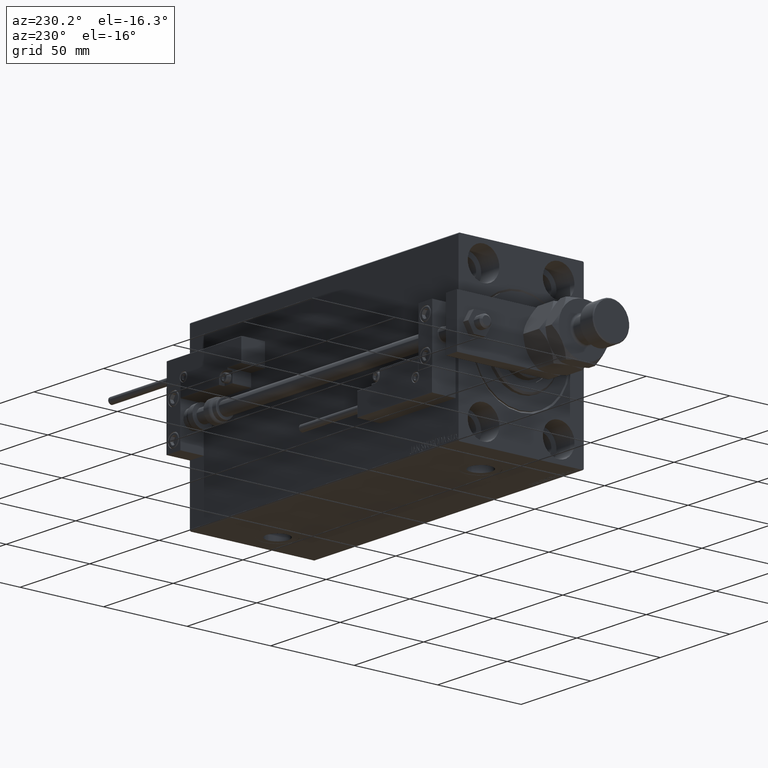
[diagram: clean part render]
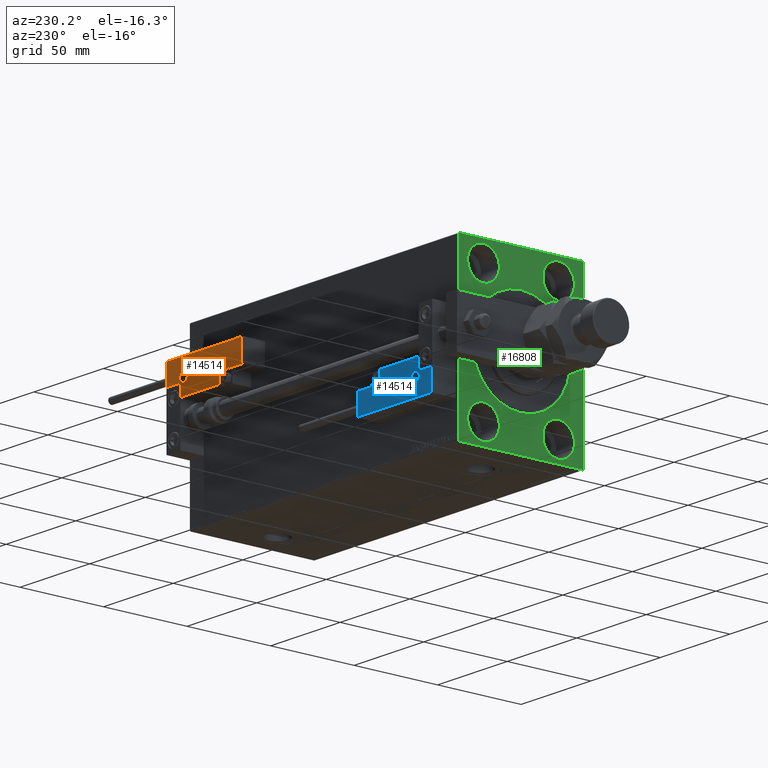
[diagram: same view with three faces highlighted in distinct colors, each labeled with its STEP entity id]
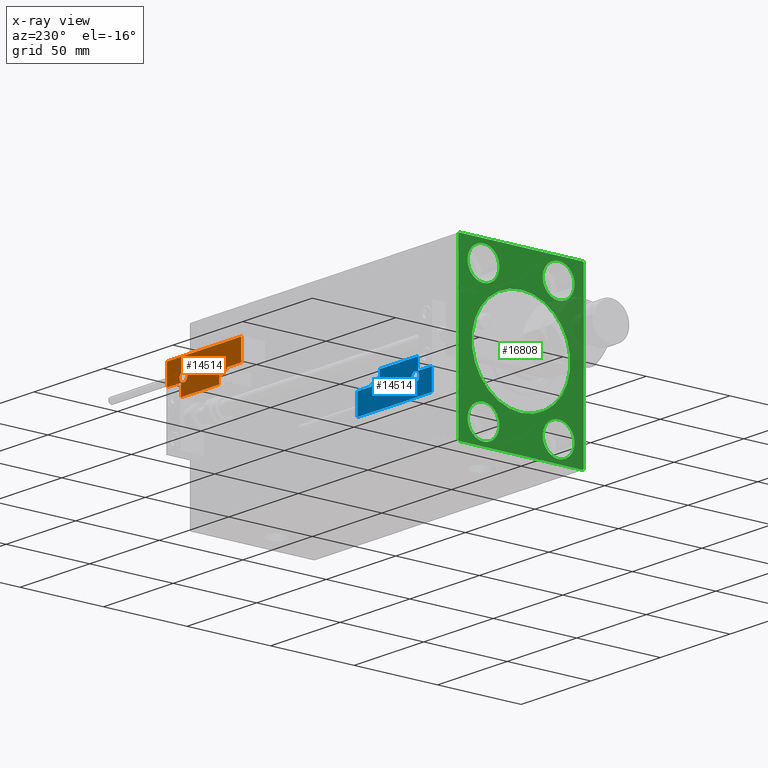
[diagram: x-ray of the same camera — body ghosted, the three highlighted faces saturated]
A machine part, auxiliary view with three faces highlighted in distinct colors.
The next image is the same camera in x-ray (body ghosted, the three faces saturated) — at least one of them is partly hidden behind the body in this view.
Their STEP definitions:

[orange] entity #14514 — the highlighted planar face has unit normal (0, 1, -0).
#740 = CARTESIAN_POINT ( 'NONE',  ( -26.69999999999994600, 7.000000000000005329, 14.00000000000000000 ) ) ;
#2530 = EDGE_CURVE ( 'NONE', #38291, #3493, #51953, .T. ) ;
#2854 = DIRECTION ( 'NONE',  ( -1.000000000000000000, 6.424901762877063495E-17, -0.000000000000000000 ) ) ;
#3014 = VERTEX_POINT ( 'NONE', #40959 ) ;
#3027 = EDGE_CURVE ( 'NONE', #42835, #11031, #27451, .T. ) ;
#3493 = VERTEX_POINT ( 'NONE', #11672 ) ;
#4336 = ORIENTED_EDGE ( 'NONE', *, *, #49762, .T. ) ;
#5076 = CARTESIAN_POINT ( 'NONE',  ( 10.69999999999999929, 3.000000000000003109, 14.00000000000000000 ) ) ;
#5101 = PLANE ( 'NONE',  #51529 ) ;
#5460 = VECTOR ( 'NONE', #21487, 1000.000000000000000 ) ;
#5518 = ORIENTED_EDGE ( 'NONE', *, *, #3027, .T. ) ;
#5536 = EDGE_CURVE ( 'NONE', #11031, #38291, #29888, .T. ) ;
#5653 = ORIENTED_EDGE ( 'NONE', *, *, #20303, .T. ) ;
#6843 = DIRECTION ( 'NONE',  ( 0.000000000000000000, -0.000000000000000000, -1.000000000000000000 ) ) ;
#8189 = CARTESIAN_POINT ( 'NONE',  ( 17.00000000000000000, 6.300000000000003375, 14.00000000000000000 ) ) ;
#8576 = CARTESIAN_POINT ( 'NONE',  ( 10.69999999999999929, 0.3000000000000032085, 14.00000000000000000 ) ) ;
#8859 = CARTESIAN_POINT ( 'NONE',  ( -16.99999999999999289, 7.300000000000003375, 14.00000000000000000 ) ) ;
#10370 = ORIENTED_EDGE ( 'NONE', *, *, #45695, .T. ) ;
#10824 = ORIENTED_EDGE ( 'NONE', *, *, #23401, .T. ) ;
#11031 = VERTEX_POINT ( 'NONE', #47113 ) ;
#11099 = CARTESIAN_POINT ( 'NONE',  ( 13.99999999999999822, 3.000000000000002665, 14.00000000000000000 ) ) ;
#11375 = EDGE_LOOP ( 'NONE', ( #10824, #13562 ) ) ;
#11436 = VECTOR ( 'NONE', #2854, 1000.000000000000000 ) ;
#11672 = CARTESIAN_POINT ( 'NONE',  ( -26.69999999999993534, 19.70000000000002061, 14.00000000000000000 ) ) ;
#12665 = FACE_OUTER_BOUND ( 'NONE', #19679, .T. ) ;
#12864 = LINE ( 'NONE', #49578, #19739 ) ;
#12923 = FACE_BOUND ( 'NONE', #11375, .T. ) ;
#12942 = DIRECTION ( 'NONE',  ( 1.000000000000000000, 0.000000000000000000, 0.000000000000000000 ) ) ;
#13094 = CARTESIAN_POINT ( 'NONE',  ( 26.70000000000006324, 19.70000000000001705, 14.00000000000000000 ) ) ;
#13562 = ORIENTED_EDGE ( 'NONE', *, *, #27536, .T. ) ;
#13892 = ORIENTED_EDGE ( 'NONE', *, *, #46484, .T. ) ;
#14514 = ADVANCED_FACE ( 'NONE', ( #12923, #12665 ), #5101, .T. ) ;
#14814 = ORIENTED_EDGE ( 'NONE', *, *, #2530, .T. ) ;
#15230 = CARTESIAN_POINT ( 'NONE',  ( -16.69999999999999218, 7.300000000000003375, 14.00000000000000000 ) ) ;
#17514 = VERTEX_POINT ( 'NONE', #43744 ) ;
#17745 = CARTESIAN_POINT ( 'NONE',  ( 26.70000000000006324, 20.00000000000001776, 14.00000000000000000 ) ) ;
#18009 = DIRECTION ( 'NONE',  ( 0.000000000000000000, 1.000000000000000000, -0.000000000000000000 ) ) ;
#19000 = CARTESIAN_POINT ( 'NONE',  ( -17.59999999999994813, 9.800000000000004263, 14.00000000000000000 ) ) ;
#19679 = EDGE_LOOP ( 'NONE', ( #31723, #4336, #5653, #23576, #32252, #13892, #5518, #25214, #14814, #52307, #10370 ) ) ;
#19739 = VECTOR ( 'NONE', #36907, 1000.000000000000000 ) ;
#20282 = EDGE_CURVE ( 'NONE', #3493, #40929, #20436, .T. ) ;
#20303 = EDGE_CURVE ( 'NONE', #27945, #40262, #12864, .T. ) ;
#20436 = LINE ( 'NONE', #740, #36110 ) ;
#21487 = DIRECTION ( 'NONE',  ( 0.000000000000000000, -1.000000000000000000, 0.000000000000000000 ) ) ;
#21797 = CARTESIAN_POINT ( 'NONE',  ( 0.000000000000000000, 0.000000000000000000, 14.00000000000000000 ) ) ;
#21817 = DIRECTION ( 'NONE',  ( 0.000000000000000000, -0.000000000000000000, -1.000000000000000000 ) ) ;
#22048 = LINE ( 'NONE', #8859, #46933 ) ;
#22856 = VECTOR ( 'NONE', #18009, 1000.000000000000000 ) ;
#23401 = EDGE_CURVE ( 'NONE', #3014, #50539, #33631, .T. ) ;
#23576 = ORIENTED_EDGE ( 'NONE', *, *, #32641, .T. ) ;
#24981 = CARTESIAN_POINT ( 'NONE',  ( 16.69999999999999929, 6.300000000000003375, 14.00000000000000000 ) ) ;
#25214 = ORIENTED_EDGE ( 'NONE', *, *, #5536, .T. ) ;
#26704 = DIRECTION ( 'NONE',  ( 9.912705577010318647E-16, 1.000000000000000000, 0.000000000000000000 ) ) ;
#27451 = LINE ( 'NONE', #28518, #31248 ) ;
#27536 = EDGE_CURVE ( 'NONE', #50539, #3014, #41548, .T. ) ;
#27945 = VERTEX_POINT ( 'NONE', #8576 ) ;
#28518 = CARTESIAN_POINT ( 'NONE',  ( 27.00000000000006395, 7.300000000000007816, 14.00000000000000000 ) ) ;
#28940 = DIRECTION ( 'NONE',  ( 1.000000000000000000, 5.782411586589357639E-16, -0.000000000000000000 ) ) ;
#29888 = LINE ( 'NONE', #17745, #22856 ) ;
#30155 = AXIS2_PLACEMENT_3D ( 'NONE', #43812, #6843, #44343 ) ;
#31017 = CARTESIAN_POINT ( 'NONE',  ( 16.69999999999999929, 7.000000000000009770, 14.00000000000000000 ) ) ;
#31248 = VECTOR ( 'NONE', #52559, 1000.000000000000000 ) ;
#31429 = EDGE_CURVE ( 'NONE', #37066, #47049, #36525, .T. ) ;
#31660 = LINE ( 'NONE', #39774, #34994 ) ;
#31723 = ORIENTED_EDGE ( 'NONE', *, *, #43456, .T. ) ;
#32226 = CARTESIAN_POINT ( 'NONE',  ( -26.99999999999993605, 19.70000000000002061, 14.00000000000000000 ) ) ;
#32252 = ORIENTED_EDGE ( 'NONE', *, *, #31429, .T. ) ;
#32641 = EDGE_CURVE ( 'NONE', #40262, #37066, #40499, .T. ) ;
#32947 = CARTESIAN_POINT ( 'NONE',  ( -26.69999999999994600, 7.300000000000005151, 14.00000000000000000 ) ) ;
#33626 = DIRECTION ( 'NONE',  ( -8.006416042969869188E-16, -1.000000000000000000, 0.000000000000000000 ) ) ;
#33631 = CIRCLE ( 'NONE', #30155, 2.800000000000000266 ) ;
#33908 = LINE ( 'NONE', #40986, #5460 ) ;
#34994 = VECTOR ( 'NONE', #40323, 1000.000000000000000 ) ;
#35926 = DIRECTION ( 'NONE',  ( 0.000000000000000000, -0.000000000000000000, -1.000000000000000000 ) ) ;
#36110 = VECTOR ( 'NONE', #33626, 1000.000000000000000 ) ;
#36525 = LINE ( 'NONE', #8189, #51173 ) ;
#36907 = DIRECTION ( 'NONE',  ( -0.000000000000000000, 1.000000000000000000, -0.000000000000000000 ) ) ;
#37066 = VERTEX_POINT ( 'NONE', #51188 ) ;
#38004 = DIRECTION ( 'NONE',  ( 1.000000000000000000, 0.000000000000000000, 0.000000000000000000 ) ) ;
#38291 = VERTEX_POINT ( 'NONE', #13094 ) ;
#38528 = DIRECTION ( 'NONE',  ( 1.000000000000000000, -1.734723475976815230E-16, 0.000000000000000000 ) ) ;
#39161 = VECTOR ( 'NONE', #26704, 1000.000000000000000 ) ;
#39774 = CARTESIAN_POINT ( 'NONE',  ( 11.00000000000000000, 0.3000000000000032085, 14.00000000000000000 ) ) ;
#40262 = VERTEX_POINT ( 'NONE', #5076 ) ;
#40323 = DIRECTION ( 'NONE',  ( 1.000000000000000000, -0.000000000000000000, 0.000000000000000000 ) ) ;
#40499 = CIRCLE ( 'NONE', #47384, 3.299999999999997158 ) ;
#40929 = VERTEX_POINT ( 'NONE', #32947 ) ;
#40959 = CARTESIAN_POINT ( 'NONE',  ( -11.99999999999994849, 9.800000000000004263, 14.00000000000000000 ) ) ;
#40986 = CARTESIAN_POINT ( 'NONE',  ( -16.69999999999999218, 3.252606517456513302E-15, 14.00000000000000000 ) ) ;
#41548 = CIRCLE ( 'NONE', #48454, 2.800000000000000266 ) ;
#42352 = CARTESIAN_POINT ( 'NONE',  ( -14.79999999999994920, 9.800000000000004263, 14.00000000000000000 ) ) ;
#42835 = VERTEX_POINT ( 'NONE', #53139 ) ;
#43456 = EDGE_CURVE ( 'NONE', #50526, #17514, #33908, .T. ) ;
#43744 = CARTESIAN_POINT ( 'NONE',  ( -16.69999999999999218, 0.3000000000000032085, 14.00000000000000000 ) ) ;
#43762 = DIRECTION ( 'NONE',  ( 1.000000000000000000, 0.000000000000000000, 0.000000000000000000 ) ) ;
#43812 = CARTESIAN_POINT ( 'NONE',  ( -14.79999999999994920, 9.800000000000004263, 14.00000000000000000 ) ) ;
#44343 = DIRECTION ( 'NONE',  ( 1.000000000000000000, 0.000000000000000000, 0.000000000000000000 ) ) ;
#45595 = DIRECTION ( 'NONE',  ( -0.000000000000000000, 0.000000000000000000, 1.000000000000000000 ) ) ;
#45695 = EDGE_CURVE ( 'NONE', #40929, #50526, #22048, .T. ) ;
#46484 = EDGE_CURVE ( 'NONE', #47049, #42835, #51550, .T. ) ;
#46933 = VECTOR ( 'NONE', #38528, 1000.000000000000000 ) ;
#47049 = VERTEX_POINT ( 'NONE', #24981 ) ;
#47113 = CARTESIAN_POINT ( 'NONE',  ( 26.70000000000006324, 7.300000000000007816, 14.00000000000000000 ) ) ;
#47384 = AXIS2_PLACEMENT_3D ( 'NONE', #11099, #35926, #43762 ) ;
#48454 = AXIS2_PLACEMENT_3D ( 'NONE', #42352, #21817, #12942 ) ;
#49578 = CARTESIAN_POINT ( 'NONE',  ( 10.69999999999999929, 3.000000000000003109, 14.00000000000000000 ) ) ;
#49762 = EDGE_CURVE ( 'NONE', #17514, #27945, #31660, .T. ) ;
#50526 = VERTEX_POINT ( 'NONE', #15230 ) ;
#50539 = VERTEX_POINT ( 'NONE', #19000 ) ;
#51173 = VECTOR ( 'NONE', #28940, 1000.000000000000000 ) ;
#51188 = CARTESIAN_POINT ( 'NONE',  ( 13.99999999999999822, 6.300000000000001599, 14.00000000000000000 ) ) ;
#51529 = AXIS2_PLACEMENT_3D ( 'NONE', #21797, #45595, #38004 ) ;
#51550 = LINE ( 'NONE', #31017, #39161 ) ;
#51953 = LINE ( 'NONE', #32226, #11436 ) ;
#52307 = ORIENTED_EDGE ( 'NONE', *, *, #20282, .T. ) ;
#52559 = DIRECTION ( 'NONE',  ( 1.000000000000000000, -1.734723475976796001E-16, 0.000000000000000000 ) ) ;
#53139 = CARTESIAN_POINT ( 'NONE',  ( 16.69999999999999929, 7.300000000000009592, 14.00000000000000000 ) ) ;

[blue] entity #14514 — the highlighted planar face has unit normal (-0, 1, -0).
#740 = CARTESIAN_POINT ( 'NONE',  ( -26.69999999999994600, 7.000000000000005329, 14.00000000000000000 ) ) ;
#2530 = EDGE_CURVE ( 'NONE', #38291, #3493, #51953, .T. ) ;
#2854 = DIRECTION ( 'NONE',  ( -1.000000000000000000, 6.424901762877063495E-17, -0.000000000000000000 ) ) ;
#3014 = VERTEX_POINT ( 'NONE', #40959 ) ;
#3027 = EDGE_CURVE ( 'NONE', #42835, #11031, #27451, .T. ) ;
#3493 = VERTEX_POINT ( 'NONE', #11672 ) ;
#4336 = ORIENTED_EDGE ( 'NONE', *, *, #49762, .T. ) ;
#5076 = CARTESIAN_POINT ( 'NONE',  ( 10.69999999999999929, 3.000000000000003109, 14.00000000000000000 ) ) ;
#5101 = PLANE ( 'NONE',  #51529 ) ;
#5460 = VECTOR ( 'NONE', #21487, 1000.000000000000000 ) ;
#5518 = ORIENTED_EDGE ( 'NONE', *, *, #3027, .T. ) ;
#5536 = EDGE_CURVE ( 'NONE', #11031, #38291, #29888, .T. ) ;
#5653 = ORIENTED_EDGE ( 'NONE', *, *, #20303, .T. ) ;
#6843 = DIRECTION ( 'NONE',  ( 0.000000000000000000, -0.000000000000000000, -1.000000000000000000 ) ) ;
#8189 = CARTESIAN_POINT ( 'NONE',  ( 17.00000000000000000, 6.300000000000003375, 14.00000000000000000 ) ) ;
#8576 = CARTESIAN_POINT ( 'NONE',  ( 10.69999999999999929, 0.3000000000000032085, 14.00000000000000000 ) ) ;
#8859 = CARTESIAN_POINT ( 'NONE',  ( -16.99999999999999289, 7.300000000000003375, 14.00000000000000000 ) ) ;
#10370 = ORIENTED_EDGE ( 'NONE', *, *, #45695, .T. ) ;
#10824 = ORIENTED_EDGE ( 'NONE', *, *, #23401, .T. ) ;
#11031 = VERTEX_POINT ( 'NONE', #47113 ) ;
#11099 = CARTESIAN_POINT ( 'NONE',  ( 13.99999999999999822, 3.000000000000002665, 14.00000000000000000 ) ) ;
#11375 = EDGE_LOOP ( 'NONE', ( #10824, #13562 ) ) ;
#11436 = VECTOR ( 'NONE', #2854, 1000.000000000000000 ) ;
#11672 = CARTESIAN_POINT ( 'NONE',  ( -26.69999999999993534, 19.70000000000002061, 14.00000000000000000 ) ) ;
#12665 = FACE_OUTER_BOUND ( 'NONE', #19679, .T. ) ;
#12864 = LINE ( 'NONE', #49578, #19739 ) ;
#12923 = FACE_BOUND ( 'NONE', #11375, .T. ) ;
#12942 = DIRECTION ( 'NONE',  ( 1.000000000000000000, 0.000000000000000000, 0.000000000000000000 ) ) ;
#13094 = CARTESIAN_POINT ( 'NONE',  ( 26.70000000000006324, 19.70000000000001705, 14.00000000000000000 ) ) ;
#13562 = ORIENTED_EDGE ( 'NONE', *, *, #27536, .T. ) ;
#13892 = ORIENTED_EDGE ( 'NONE', *, *, #46484, .T. ) ;
#14514 = ADVANCED_FACE ( 'NONE', ( #12923, #12665 ), #5101, .T. ) ;
#14814 = ORIENTED_EDGE ( 'NONE', *, *, #2530, .T. ) ;
#15230 = CARTESIAN_POINT ( 'NONE',  ( -16.69999999999999218, 7.300000000000003375, 14.00000000000000000 ) ) ;
#17514 = VERTEX_POINT ( 'NONE', #43744 ) ;
#17745 = CARTESIAN_POINT ( 'NONE',  ( 26.70000000000006324, 20.00000000000001776, 14.00000000000000000 ) ) ;
#18009 = DIRECTION ( 'NONE',  ( 0.000000000000000000, 1.000000000000000000, -0.000000000000000000 ) ) ;
#19000 = CARTESIAN_POINT ( 'NONE',  ( -17.59999999999994813, 9.800000000000004263, 14.00000000000000000 ) ) ;
#19679 = EDGE_LOOP ( 'NONE', ( #31723, #4336, #5653, #23576, #32252, #13892, #5518, #25214, #14814, #52307, #10370 ) ) ;
#19739 = VECTOR ( 'NONE', #36907, 1000.000000000000000 ) ;
#20282 = EDGE_CURVE ( 'NONE', #3493, #40929, #20436, .T. ) ;
#20303 = EDGE_CURVE ( 'NONE', #27945, #40262, #12864, .T. ) ;
#20436 = LINE ( 'NONE', #740, #36110 ) ;
#21487 = DIRECTION ( 'NONE',  ( 0.000000000000000000, -1.000000000000000000, 0.000000000000000000 ) ) ;
#21797 = CARTESIAN_POINT ( 'NONE',  ( 0.000000000000000000, 0.000000000000000000, 14.00000000000000000 ) ) ;
#21817 = DIRECTION ( 'NONE',  ( 0.000000000000000000, -0.000000000000000000, -1.000000000000000000 ) ) ;
#22048 = LINE ( 'NONE', #8859, #46933 ) ;
#22856 = VECTOR ( 'NONE', #18009, 1000.000000000000000 ) ;
#23401 = EDGE_CURVE ( 'NONE', #3014, #50539, #33631, .T. ) ;
#23576 = ORIENTED_EDGE ( 'NONE', *, *, #32641, .T. ) ;
#24981 = CARTESIAN_POINT ( 'NONE',  ( 16.69999999999999929, 6.300000000000003375, 14.00000000000000000 ) ) ;
#25214 = ORIENTED_EDGE ( 'NONE', *, *, #5536, .T. ) ;
#26704 = DIRECTION ( 'NONE',  ( 9.912705577010318647E-16, 1.000000000000000000, 0.000000000000000000 ) ) ;
#27451 = LINE ( 'NONE', #28518, #31248 ) ;
#27536 = EDGE_CURVE ( 'NONE', #50539, #3014, #41548, .T. ) ;
#27945 = VERTEX_POINT ( 'NONE', #8576 ) ;
#28518 = CARTESIAN_POINT ( 'NONE',  ( 27.00000000000006395, 7.300000000000007816, 14.00000000000000000 ) ) ;
#28940 = DIRECTION ( 'NONE',  ( 1.000000000000000000, 5.782411586589357639E-16, -0.000000000000000000 ) ) ;
#29888 = LINE ( 'NONE', #17745, #22856 ) ;
#30155 = AXIS2_PLACEMENT_3D ( 'NONE', #43812, #6843, #44343 ) ;
#31017 = CARTESIAN_POINT ( 'NONE',  ( 16.69999999999999929, 7.000000000000009770, 14.00000000000000000 ) ) ;
#31248 = VECTOR ( 'NONE', #52559, 1000.000000000000000 ) ;
#31429 = EDGE_CURVE ( 'NONE', #37066, #47049, #36525, .T. ) ;
#31660 = LINE ( 'NONE', #39774, #34994 ) ;
#31723 = ORIENTED_EDGE ( 'NONE', *, *, #43456, .T. ) ;
#32226 = CARTESIAN_POINT ( 'NONE',  ( -26.99999999999993605, 19.70000000000002061, 14.00000000000000000 ) ) ;
#32252 = ORIENTED_EDGE ( 'NONE', *, *, #31429, .T. ) ;
#32641 = EDGE_CURVE ( 'NONE', #40262, #37066, #40499, .T. ) ;
#32947 = CARTESIAN_POINT ( 'NONE',  ( -26.69999999999994600, 7.300000000000005151, 14.00000000000000000 ) ) ;
#33626 = DIRECTION ( 'NONE',  ( -8.006416042969869188E-16, -1.000000000000000000, 0.000000000000000000 ) ) ;
#33631 = CIRCLE ( 'NONE', #30155, 2.800000000000000266 ) ;
#33908 = LINE ( 'NONE', #40986, #5460 ) ;
#34994 = VECTOR ( 'NONE', #40323, 1000.000000000000000 ) ;
#35926 = DIRECTION ( 'NONE',  ( 0.000000000000000000, -0.000000000000000000, -1.000000000000000000 ) ) ;
#36110 = VECTOR ( 'NONE', #33626, 1000.000000000000000 ) ;
#36525 = LINE ( 'NONE', #8189, #51173 ) ;
#36907 = DIRECTION ( 'NONE',  ( -0.000000000000000000, 1.000000000000000000, -0.000000000000000000 ) ) ;
#37066 = VERTEX_POINT ( 'NONE', #51188 ) ;
#38004 = DIRECTION ( 'NONE',  ( 1.000000000000000000, 0.000000000000000000, 0.000000000000000000 ) ) ;
#38291 = VERTEX_POINT ( 'NONE', #13094 ) ;
#38528 = DIRECTION ( 'NONE',  ( 1.000000000000000000, -1.734723475976815230E-16, 0.000000000000000000 ) ) ;
#39161 = VECTOR ( 'NONE', #26704, 1000.000000000000000 ) ;
#39774 = CARTESIAN_POINT ( 'NONE',  ( 11.00000000000000000, 0.3000000000000032085, 14.00000000000000000 ) ) ;
#40262 = VERTEX_POINT ( 'NONE', #5076 ) ;
#40323 = DIRECTION ( 'NONE',  ( 1.000000000000000000, -0.000000000000000000, 0.000000000000000000 ) ) ;
#40499 = CIRCLE ( 'NONE', #47384, 3.299999999999997158 ) ;
#40929 = VERTEX_POINT ( 'NONE', #32947 ) ;
#40959 = CARTESIAN_POINT ( 'NONE',  ( -11.99999999999994849, 9.800000000000004263, 14.00000000000000000 ) ) ;
#40986 = CARTESIAN_POINT ( 'NONE',  ( -16.69999999999999218, 3.252606517456513302E-15, 14.00000000000000000 ) ) ;
#41548 = CIRCLE ( 'NONE', #48454, 2.800000000000000266 ) ;
#42352 = CARTESIAN_POINT ( 'NONE',  ( -14.79999999999994920, 9.800000000000004263, 14.00000000000000000 ) ) ;
#42835 = VERTEX_POINT ( 'NONE', #53139 ) ;
#43456 = EDGE_CURVE ( 'NONE', #50526, #17514, #33908, .T. ) ;
#43744 = CARTESIAN_POINT ( 'NONE',  ( -16.69999999999999218, 0.3000000000000032085, 14.00000000000000000 ) ) ;
#43762 = DIRECTION ( 'NONE',  ( 1.000000000000000000, 0.000000000000000000, 0.000000000000000000 ) ) ;
#43812 = CARTESIAN_POINT ( 'NONE',  ( -14.79999999999994920, 9.800000000000004263, 14.00000000000000000 ) ) ;
#44343 = DIRECTION ( 'NONE',  ( 1.000000000000000000, 0.000000000000000000, 0.000000000000000000 ) ) ;
#45595 = DIRECTION ( 'NONE',  ( -0.000000000000000000, 0.000000000000000000, 1.000000000000000000 ) ) ;
#45695 = EDGE_CURVE ( 'NONE', #40929, #50526, #22048, .T. ) ;
#46484 = EDGE_CURVE ( 'NONE', #47049, #42835, #51550, .T. ) ;
#46933 = VECTOR ( 'NONE', #38528, 1000.000000000000000 ) ;
#47049 = VERTEX_POINT ( 'NONE', #24981 ) ;
#47113 = CARTESIAN_POINT ( 'NONE',  ( 26.70000000000006324, 7.300000000000007816, 14.00000000000000000 ) ) ;
#47384 = AXIS2_PLACEMENT_3D ( 'NONE', #11099, #35926, #43762 ) ;
#48454 = AXIS2_PLACEMENT_3D ( 'NONE', #42352, #21817, #12942 ) ;
#49578 = CARTESIAN_POINT ( 'NONE',  ( 10.69999999999999929, 3.000000000000003109, 14.00000000000000000 ) ) ;
#49762 = EDGE_CURVE ( 'NONE', #17514, #27945, #31660, .T. ) ;
#50526 = VERTEX_POINT ( 'NONE', #15230 ) ;
#50539 = VERTEX_POINT ( 'NONE', #19000 ) ;
#51173 = VECTOR ( 'NONE', #28940, 1000.000000000000000 ) ;
#51188 = CARTESIAN_POINT ( 'NONE',  ( 13.99999999999999822, 6.300000000000001599, 14.00000000000000000 ) ) ;
#51529 = AXIS2_PLACEMENT_3D ( 'NONE', #21797, #45595, #38004 ) ;
#51550 = LINE ( 'NONE', #31017, #39161 ) ;
#51953 = LINE ( 'NONE', #32226, #11436 ) ;
#52307 = ORIENTED_EDGE ( 'NONE', *, *, #20282, .T. ) ;
#52559 = DIRECTION ( 'NONE',  ( 1.000000000000000000, -1.734723475976796001E-16, 0.000000000000000000 ) ) ;
#53139 = CARTESIAN_POINT ( 'NONE',  ( 16.69999999999999929, 7.300000000000009592, 14.00000000000000000 ) ) ;

[green] entity #16808 — the highlighted planar face has unit normal (1, 0, 0).
#206 = CARTESIAN_POINT ( 'NONE',  ( 0.000000000000000000, -37.50000000000000711, -49.50000000000000711 ) ) ;
#976 = LINE ( 'NONE', #5028, #36427 ) ;
#1316 = CARTESIAN_POINT ( 'NONE',  ( 0.000000000000000000, 37.50000000000000711, -49.50000000000000000 ) ) ;
#1381 = CARTESIAN_POINT ( 'NONE',  ( 0.000000000000000000, 22.49999999999999645, -37.99999999999999289 ) ) ;
#1776 = CARTESIAN_POINT ( 'NONE',  ( 0.000000000000000000, 22.50000000000000355, 37.99999999999999289 ) ) ;
#2148 = VERTEX_POINT ( 'NONE', #40412 ) ;
#2821 = VERTEX_POINT ( 'NONE', #52899 ) ;
#2992 = CARTESIAN_POINT ( 'NONE',  ( 0.000000000000000000, -22.50000000000000711, -37.99999999999999289 ) ) ;
#4070 = DIRECTION ( 'NONE',  ( 1.000000000000000000, 0.000000000000000000, 0.000000000000000000 ) ) ;
#4221 = EDGE_LOOP ( 'NONE', ( #42963, #12514, #35728, #10692, #43498, #34123, #49846, #49848 ) ) ;
#4250 = CARTESIAN_POINT ( 'NONE',  ( 0.000000000000000000, -22.50000000000000711, -47.49999999999999289 ) ) ;
#4279 = CARTESIAN_POINT ( 'NONE',  ( 0.000000000000000000, 37.50000000000000711, -49.50000000000000000 ) ) ;
#4466 = VERTEX_POINT ( 'NONE', #29453 ) ;
#5028 = CARTESIAN_POINT ( 'NONE',  ( 0.000000000000000000, -37.00000000000000711, -50.00000000000000711 ) ) ;
#5295 = EDGE_CURVE ( 'NONE', #5676, #7790, #21156, .T. ) ;
#5489 = EDGE_CURVE ( 'NONE', #49007, #46819, #51483, .T. ) ;
#5659 = AXIS2_PLACEMENT_3D ( 'NONE', #12652, #8864, #21512 ) ;
#5676 = VERTEX_POINT ( 'NONE', #37675 ) ;
#6311 = CARTESIAN_POINT ( 'NONE',  ( 0.000000000000000000, 37.50000000000000711, -50.00000000000000000 ) ) ;
#6845 = ORIENTED_EDGE ( 'NONE', *, *, #50358, .F. ) ;
#7790 = VERTEX_POINT ( 'NONE', #50691 ) ;
#7842 = FACE_BOUND ( 'NONE', #42972, .T. ) ;
#7943 = CIRCLE ( 'NONE', #38935, 9.500000000000001776 ) ;
#8031 = CARTESIAN_POINT ( 'NONE',  ( 0.000000000000000000, 37.00000000000000711, -50.00000000000000000 ) ) ;
#8628 = ORIENTED_EDGE ( 'NONE', *, *, #18410, .F. ) ;
#8864 = DIRECTION ( 'NONE',  ( 1.000000000000000000, 0.000000000000000000, 0.000000000000000000 ) ) ;
#9139 = DIRECTION ( 'NONE',  ( 0.000000000000000000, 0.000000000000000000, 1.000000000000000000 ) ) ;
#9145 = DIRECTION ( 'NONE',  ( 0.000000000000000000, 0.000000000000000000, 1.000000000000000000 ) ) ;
#9147 = CIRCLE ( 'NONE', #13456, 9.500000000000001776 ) ;
#9834 = CARTESIAN_POINT ( 'NONE',  ( 0.000000000000000000, -22.50000000000000711, -37.99999999999999289 ) ) ;
#10209 = CARTESIAN_POINT ( 'NONE',  ( 0.000000000000000000, 22.49999999999999645, -28.49999999999998934 ) ) ;
#10547 = CARTESIAN_POINT ( 'NONE',  ( 0.000000000000000000, 22.50000000000000355, 37.99999999999999289 ) ) ;
#10692 = ORIENTED_EDGE ( 'NONE', *, *, #21124, .T. ) ;
#12501 = ORIENTED_EDGE ( 'NONE', *, *, #52945, .T. ) ;
#12514 = ORIENTED_EDGE ( 'NONE', *, *, #28629, .T. ) ;
#12540 = CIRCLE ( 'NONE', #31467, 9.500000000000001776 ) ;
#12624 = EDGE_CURVE ( 'NONE', #35509, #39568, #37666, .T. ) ;
#12652 = CARTESIAN_POINT ( 'NONE',  ( 0.000000000000000000, 0.000000000000000000, 0.000000000000000000 ) ) ;
#12714 = DIRECTION ( 'NONE',  ( -1.000000000000000000, 0.000000000000000000, 0.000000000000000000 ) ) ;
#12997 = VERTEX_POINT ( 'NONE', #18300 ) ;
#13309 = DIRECTION ( 'NONE',  ( 0.000000000000000000, 0.000000000000000000, -1.000000000000000000 ) ) ;
#13456 = AXIS2_PLACEMENT_3D ( 'NONE', #1776, #50605, #30604 ) ;
#13947 = VERTEX_POINT ( 'NONE', #4250 ) ;
#14920 = CARTESIAN_POINT ( 'NONE',  ( 0.000000000000000000, -36.99999999999997868, 49.99999999999999289 ) ) ;
#15011 = EDGE_LOOP ( 'NONE', ( #12501, #51543 ) ) ;
#15329 = CARTESIAN_POINT ( 'NONE',  ( 0.000000000000000000, 36.99999999999999289, 50.00000000000000711 ) ) ;
#16808 = ADVANCED_FACE ( 'NONE', ( #32650, #41549, #7842, #49123, #21005, #37482 ), #32378, .F. ) ;
#17343 = CARTESIAN_POINT ( 'NONE',  ( 0.000000000000000000, 0.000000000000000000, 0.000000000000000000 ) ) ;
#17515 = CIRCLE ( 'NONE', #33029, 9.500000000000001776 ) ;
#17892 = EDGE_CURVE ( 'NONE', #19969, #12997, #49113, .T. ) ;
#18300 = CARTESIAN_POINT ( 'NONE',  ( 0.000000000000000000, 22.49999999999999645, -47.49999999999999289 ) ) ;
#18410 = EDGE_CURVE ( 'NONE', #2821, #13947, #25779, .T. ) ;
#19208 = DIRECTION ( 'NONE',  ( -0.000000000000000000, 0.7071067811865474617, 0.7071067811865474617 ) ) ;
#19969 = VERTEX_POINT ( 'NONE', #10209 ) ;
#20055 = EDGE_CURVE ( 'NONE', #36237, #30337, #26386, .T. ) ;
#21005 = FACE_BOUND ( 'NONE', #29647, .T. ) ;
#21124 = EDGE_CURVE ( 'NONE', #36237, #30727, #52305, .T. ) ;
#21156 = CIRCLE ( 'NONE', #5659, 29.49999999999997513 ) ;
#21512 = DIRECTION ( 'NONE',  ( 0.000000000000000000, 0.000000000000000000, -1.000000000000000000 ) ) ;
#21824 = CIRCLE ( 'NONE', #37345, 9.500000000000001776 ) ;
#22239 = ORIENTED_EDGE ( 'NONE', *, *, #51586, .F. ) ;
#22333 = CARTESIAN_POINT ( 'NONE',  ( 0.000000000000000000, 37.49999999999999289, 50.00000000000000711 ) ) ;
#22602 = EDGE_CURVE ( 'NONE', #46988, #46819, #52701, .T. ) ;
#23032 = ORIENTED_EDGE ( 'NONE', *, *, #30793, .F. ) ;
#23202 = EDGE_CURVE ( 'NONE', #49007, #30727, #51110, .T. ) ;
#23840 = ORIENTED_EDGE ( 'NONE', *, *, #17892, .F. ) ;
#24655 = AXIS2_PLACEMENT_3D ( 'NONE', #17343, #29762, #13309 ) ;
#24731 = ORIENTED_EDGE ( 'NONE', *, *, #30041, .F. ) ;
#24865 = VERTEX_POINT ( 'NONE', #47797 ) ;
#24903 = CARTESIAN_POINT ( 'NONE',  ( 0.000000000000000000, 22.50000000000000355, 28.49999999999998934 ) ) ;
#25321 = CARTESIAN_POINT ( 'NONE',  ( 0.000000000000000000, -22.49999999999999645, 37.99999999999999289 ) ) ;
#25367 = DIRECTION ( 'NONE',  ( 0.000000000000000000, 0.000000000000000000, 1.000000000000000000 ) ) ;
#25740 = AXIS2_PLACEMENT_3D ( 'NONE', #33426, #4070, #48862 ) ;
#25779 = CIRCLE ( 'NONE', #31821, 9.500000000000001776 ) ;
#26329 = VECTOR ( 'NONE', #50672, 1000.000000000000114 ) ;
#26386 = LINE ( 'NONE', #22333, #29208 ) ;
#28027 = EDGE_CURVE ( 'NONE', #46988, #46816, #976, .T. ) ;
#28629 = EDGE_CURVE ( 'NONE', #2148, #30337, #39720, .T. ) ;
#28849 = CARTESIAN_POINT ( 'NONE',  ( 0.000000000000000000, 37.49999999999999289, 49.50000000000000000 ) ) ;
#28904 = VECTOR ( 'NONE', #44338, 1000.000000000000000 ) ;
#29208 = VECTOR ( 'NONE', #46640, 1000.000000000000000 ) ;
#29453 = CARTESIAN_POINT ( 'NONE',  ( 0.000000000000000000, -22.49999999999999645, 28.49999999999998934 ) ) ;
#29494 = DIRECTION ( 'NONE',  ( -1.000000000000000000, 0.000000000000000000, 0.000000000000000000 ) ) ;
#29647 = EDGE_LOOP ( 'NONE', ( #8628, #24731 ) ) ;
#29762 = DIRECTION ( 'NONE',  ( 1.000000000000000000, 0.000000000000000000, 0.000000000000000000 ) ) ;
#30041 = EDGE_CURVE ( 'NONE', #13947, #2821, #21824, .T. ) ;
#30337 = VERTEX_POINT ( 'NONE', #14920 ) ;
#30604 = DIRECTION ( 'NONE',  ( 0.000000000000000000, 0.000000000000000000, 1.000000000000000000 ) ) ;
#30660 = CIRCLE ( 'NONE', #24655, 29.49999999999997513 ) ;
#30727 = VERTEX_POINT ( 'NONE', #28849 ) ;
#30793 = EDGE_CURVE ( 'NONE', #4466, #24865, #17515, .T. ) ;
#31467 = AXIS2_PLACEMENT_3D ( 'NONE', #33540, #29494, #44927 ) ;
#31821 = AXIS2_PLACEMENT_3D ( 'NONE', #9834, #42497, #50585 ) ;
#32046 = DIRECTION ( 'NONE',  ( -0.000000000000000000, 0.7071067811865425767, -0.7071067811865525687 ) ) ;
#32378 = PLANE ( 'NONE',  #25740 ) ;
#32650 = FACE_BOUND ( 'NONE', #15011, .T. ) ;
#33029 = AXIS2_PLACEMENT_3D ( 'NONE', #25321, #49377, #9145 ) ;
#33426 = CARTESIAN_POINT ( 'NONE',  ( 0.000000000000000000, 0.000000000000000000, 0.000000000000000000 ) ) ;
#33540 = CARTESIAN_POINT ( 'NONE',  ( 0.000000000000000000, -22.49999999999999645, 37.99999999999999289 ) ) ;
#33677 = DIRECTION ( 'NONE',  ( -1.000000000000000000, 0.000000000000000000, 0.000000000000000000 ) ) ;
#33863 = DIRECTION ( 'NONE',  ( -0.000000000000000000, -0.7071067811865474617, 0.7071067811865474617 ) ) ;
#34123 = ORIENTED_EDGE ( 'NONE', *, *, #5489, .T. ) ;
#35042 = DIRECTION ( 'NONE',  ( -1.000000000000000000, 0.000000000000000000, 0.000000000000000000 ) ) ;
#35099 = DIRECTION ( 'NONE',  ( -1.000000000000000000, 0.000000000000000000, 0.000000000000000000 ) ) ;
#35509 = VERTEX_POINT ( 'NONE', #44106 ) ;
#35728 = ORIENTED_EDGE ( 'NONE', *, *, #20055, .F. ) ;
#36237 = VERTEX_POINT ( 'NONE', #39801 ) ;
#36427 = VECTOR ( 'NONE', #33863, 1000.000000000000114 ) ;
#36817 = EDGE_LOOP ( 'NONE', ( #23840, #42508 ) ) ;
#37345 = AXIS2_PLACEMENT_3D ( 'NONE', #2992, #33677, #9139 ) ;
#37482 = FACE_OUTER_BOUND ( 'NONE', #4221, .T. ) ;
#37666 = CIRCLE ( 'NONE', #48891, 9.500000000000001776 ) ;
#37675 = CARTESIAN_POINT ( 'NONE',  ( 0.000000000000000000, 3.612708057484688448E-15, -29.49999999999997513 ) ) ;
#38147 = VECTOR ( 'NONE', #19208, 1000.000000000000114 ) ;
#38734 = AXIS2_PLACEMENT_3D ( 'NONE', #48258, #35042, #51511 ) ;
#38935 = AXIS2_PLACEMENT_3D ( 'NONE', #1381, #12714, #25367 ) ;
#39154 = DIRECTION ( 'NONE',  ( 0.000000000000000000, 0.000000000000000000, 1.000000000000000000 ) ) ;
#39568 = VERTEX_POINT ( 'NONE', #24903 ) ;
#39720 = LINE ( 'NONE', #44591, #38147 ) ;
#39801 = CARTESIAN_POINT ( 'NONE',  ( 0.000000000000000000, 36.99999999999999289, 50.00000000000000711 ) ) ;
#40041 = EDGE_CURVE ( 'NONE', #12997, #19969, #7943, .T. ) ;
#40412 = CARTESIAN_POINT ( 'NONE',  ( 0.000000000000000000, -37.50000000000000711, 49.49999999999996447 ) ) ;
#41401 = VECTOR ( 'NONE', #42486, 1000.000000000000000 ) ;
#41549 = FACE_BOUND ( 'NONE', #36817, .T. ) ;
#41906 = EDGE_LOOP ( 'NONE', ( #48835, #6845 ) ) ;
#42262 = CARTESIAN_POINT ( 'NONE',  ( 0.000000000000000000, -37.00000000000000711, -50.00000000000000711 ) ) ;
#42486 = DIRECTION ( 'NONE',  ( 0.000000000000000000, -1.387778780781445676E-16, 1.000000000000000000 ) ) ;
#42497 = DIRECTION ( 'NONE',  ( -1.000000000000000000, 0.000000000000000000, 0.000000000000000000 ) ) ;
#42508 = ORIENTED_EDGE ( 'NONE', *, *, #40041, .F. ) ;
#42963 = ORIENTED_EDGE ( 'NONE', *, *, #48469, .F. ) ;
#42972 = EDGE_LOOP ( 'NONE', ( #22239, #23032 ) ) ;
#43498 = ORIENTED_EDGE ( 'NONE', *, *, #23202, .F. ) ;
#43802 = CARTESIAN_POINT ( 'NONE',  ( 0.000000000000000000, -37.50000000000000711, -50.00000000000000711 ) ) ;
#44106 = CARTESIAN_POINT ( 'NONE',  ( 0.000000000000000000, 22.50000000000000355, 47.49999999999999289 ) ) ;
#44338 = DIRECTION ( 'NONE',  ( 0.000000000000000000, 0.000000000000000000, -1.000000000000000000 ) ) ;
#44591 = CARTESIAN_POINT ( 'NONE',  ( 0.000000000000000000, -37.50000000000000711, 49.49999999999996447 ) ) ;
#44613 = DIRECTION ( 'NONE',  ( 0.000000000000000000, 1.000000000000000000, 9.251858538542970348E-17 ) ) ;
#44927 = DIRECTION ( 'NONE',  ( 0.000000000000000000, 0.000000000000000000, 1.000000000000000000 ) ) ;
#46237 = VECTOR ( 'NONE', #32046, 999.9999999999998863 ) ;
#46640 = DIRECTION ( 'NONE',  ( 0.000000000000000000, -1.000000000000000000, -1.850371707708594316E-16 ) ) ;
#46816 = VERTEX_POINT ( 'NONE', #206 ) ;
#46819 = VERTEX_POINT ( 'NONE', #8031 ) ;
#46988 = VERTEX_POINT ( 'NONE', #42262 ) ;
#47797 = CARTESIAN_POINT ( 'NONE',  ( 0.000000000000000000, -22.49999999999999645, 47.49999999999999289 ) ) ;
#48258 = CARTESIAN_POINT ( 'NONE',  ( 0.000000000000000000, 22.49999999999999645, -37.99999999999999289 ) ) ;
#48293 = VECTOR ( 'NONE', #44613, 1000.000000000000000 ) ;
#48469 = EDGE_CURVE ( 'NONE', #2148, #46816, #52441, .T. ) ;
#48835 = ORIENTED_EDGE ( 'NONE', *, *, #12624, .F. ) ;
#48862 = DIRECTION ( 'NONE',  ( 0.000000000000000000, 0.000000000000000000, -1.000000000000000000 ) ) ;
#48891 = AXIS2_PLACEMENT_3D ( 'NONE', #10547, #35099, #39154 ) ;
#49007 = VERTEX_POINT ( 'NONE', #4279 ) ;
#49113 = CIRCLE ( 'NONE', #38734, 9.500000000000001776 ) ;
#49123 = FACE_BOUND ( 'NONE', #41906, .T. ) ;
#49377 = DIRECTION ( 'NONE',  ( -1.000000000000000000, 0.000000000000000000, 0.000000000000000000 ) ) ;
#49846 = ORIENTED_EDGE ( 'NONE', *, *, #22602, .F. ) ;
#49848 = ORIENTED_EDGE ( 'NONE', *, *, #28027, .T. ) ;
#50358 = EDGE_CURVE ( 'NONE', #39568, #35509, #9147, .T. ) ;
#50585 = DIRECTION ( 'NONE',  ( 0.000000000000000000, 0.000000000000000000, 1.000000000000000000 ) ) ;
#50605 = DIRECTION ( 'NONE',  ( -1.000000000000000000, 0.000000000000000000, 0.000000000000000000 ) ) ;
#50672 = DIRECTION ( 'NONE',  ( 0.000000000000000000, -0.7071067811865474617, -0.7071067811865474617 ) ) ;
#50691 = CARTESIAN_POINT ( 'NONE',  ( 0.000000000000000000, 0.000000000000000000, 29.49999999999997513 ) ) ;
#51110 = LINE ( 'NONE', #6311, #41401 ) ;
#51483 = LINE ( 'NONE', #1316, #26329 ) ;
#51511 = DIRECTION ( 'NONE',  ( 0.000000000000000000, 0.000000000000000000, 1.000000000000000000 ) ) ;
#51543 = ORIENTED_EDGE ( 'NONE', *, *, #5295, .T. ) ;
#51586 = EDGE_CURVE ( 'NONE', #24865, #4466, #12540, .T. ) ;
#52305 = LINE ( 'NONE', #15329, #46237 ) ;
#52441 = LINE ( 'NONE', #53243, #28904 ) ;
#52701 = LINE ( 'NONE', #43802, #48293 ) ;
#52899 = CARTESIAN_POINT ( 'NONE',  ( 0.000000000000000000, -22.50000000000000711, -28.49999999999998934 ) ) ;
#52945 = EDGE_CURVE ( 'NONE', #7790, #5676, #30660, .T. ) ;
#53243 = CARTESIAN_POINT ( 'NONE',  ( 0.000000000000000000, -37.50000000000000711, 49.99999999999999289 ) ) ;